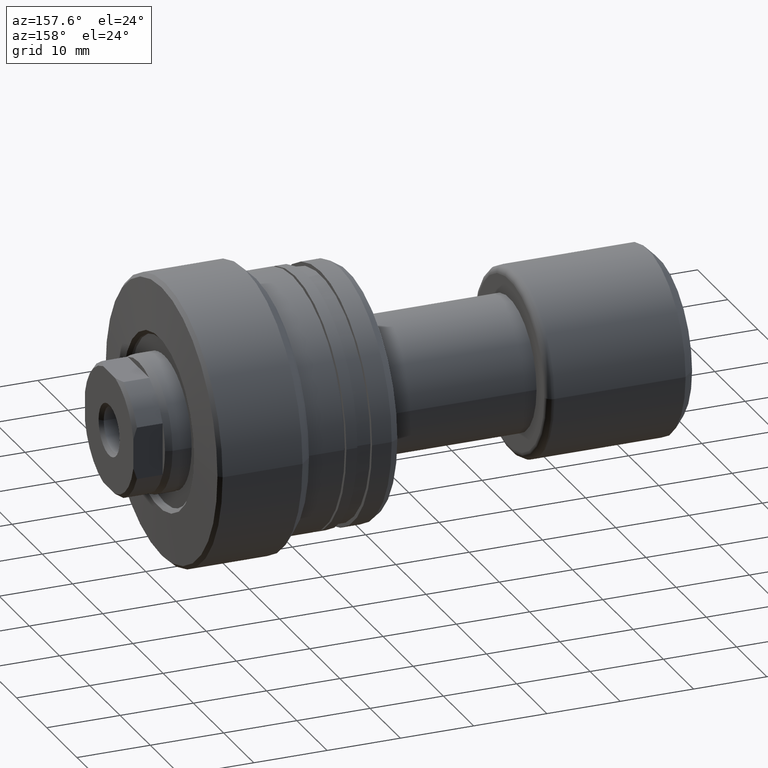
[diagram: clean part render]
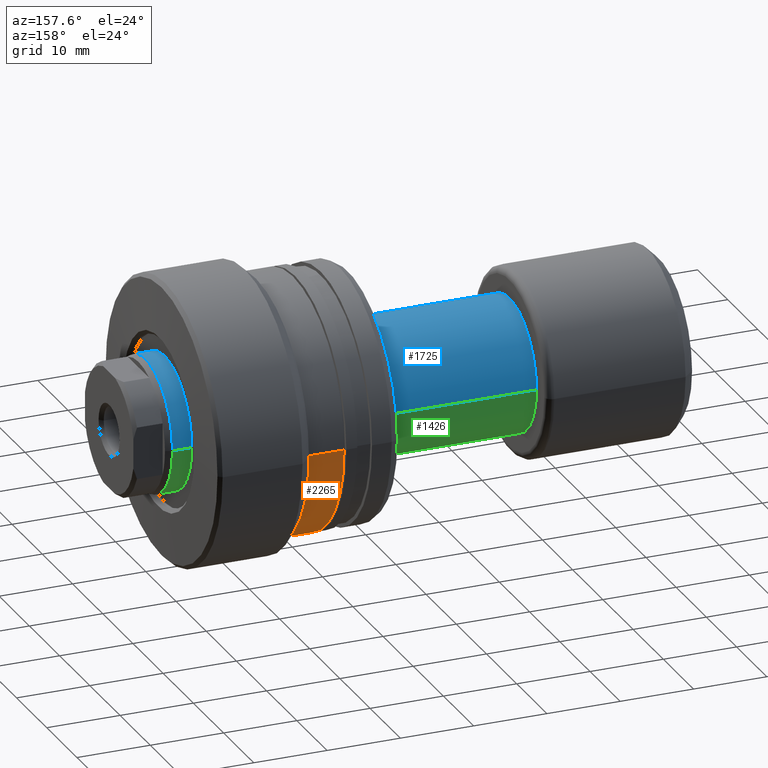
[diagram: same view with three faces highlighted in distinct colors, each labeled with its STEP entity id]
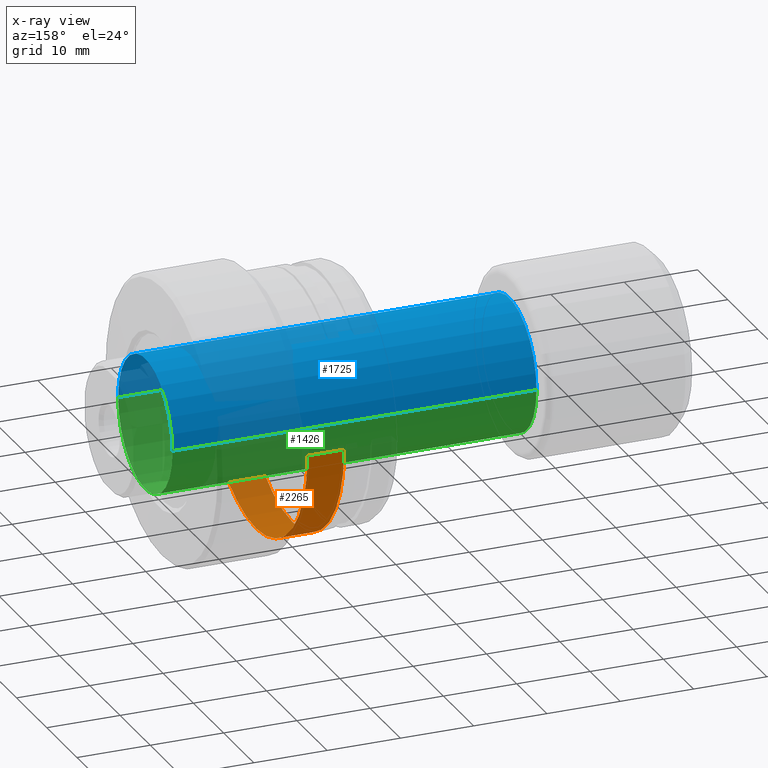
[diagram: x-ray of the same camera — body ghosted, the three highlighted faces saturated]
A machine part, auxiliary view with three faces highlighted in distinct colors.
The next image is the same camera in x-ray (body ghosted, the three faces saturated) — at least one of them is partly hidden behind the body in this view.
Their STEP definitions:

[orange] entity #2265 — the highlighted cylindrical surface (partial cylindrical patch) has radius 17 mm, axis along (-1, 0, 0).
#9 = CARTESIAN_POINT ( 'NONE',  ( -18.99999999999996447, 16.99999999999998224, 2.081899558550499885E-15 ) ) ;
#24 = DIRECTION ( 'NONE',  ( -1.020425574104004591E-15, -1.000000000000000000, 0.000000000000000000 ) ) ;
#71 = CIRCLE ( 'NONE', #1996, 16.99999999999999289 ) ;
#80 = CARTESIAN_POINT ( 'NONE',  ( -13.99999999999996447, 16.99999999999997158, 2.081899558550499096E-15 ) ) ;
#143 = AXIS2_PLACEMENT_3D ( 'NONE', #1515, #405, #1937 ) ;
#156 = DIRECTION ( 'NONE',  ( -1.020425574104004985E-15, -1.000000000000000000, 0.000000000000000000 ) ) ;
#237 = ORIENTED_EDGE ( 'NONE', *, *, #655, .T. ) ;
#262 = DIRECTION ( 'NONE',  ( -1.000000000000000000, 9.810081908519753690E-16, -0.000000000000000000 ) ) ;
#405 = DIRECTION ( 'NONE',  ( -1.000000000000000000, 9.810081908519753690E-16, -0.000000000000000000 ) ) ;
#521 = VECTOR ( 'NONE', #1013, 1000.000000000000000 ) ;
#526 = VERTEX_POINT ( 'NONE', #80 ) ;
#567 = CARTESIAN_POINT ( 'NONE',  ( -13.99999999999998046, -1.597083568161236364E-14, 0.000000000000000000 ) ) ;
#655 = EDGE_CURVE ( 'NONE', #691, #1315, #1965, .T. ) ;
#691 = VERTEX_POINT ( 'NONE', #1930 ) ;
#757 = CYLINDRICAL_SURFACE ( 'NONE', #143, 16.99999999999998934 ) ;
#938 = FACE_OUTER_BOUND ( 'NONE', #1251, .T. ) ;
#1013 = DIRECTION ( 'NONE',  ( -1.000000000000000000, 9.810081908519753690E-16, -0.000000000000000000 ) ) ;
#1115 = AXIS2_PLACEMENT_3D ( 'NONE', #567, #1288, #156 ) ;
#1244 = EDGE_CURVE ( 'NONE', #2194, #1315, #71, .T. ) ;
#1251 = EDGE_LOOP ( 'NONE', ( #1454, #2376, #237, #2062 ) ) ;
#1283 = EDGE_CURVE ( 'NONE', #526, #691, #1718, .T. ) ;
#1288 = DIRECTION ( 'NONE',  ( -1.000000000000000000, 9.810081908519753690E-16, -0.000000000000000000 ) ) ;
#1303 = VECTOR ( 'NONE', #262, 1000.000000000000000 ) ;
#1315 = VERTEX_POINT ( 'NONE', #1470 ) ;
#1454 = ORIENTED_EDGE ( 'NONE', *, *, #1882, .F. ) ;
#1470 = CARTESIAN_POINT ( 'NONE',  ( -19.00000000000000000, -17.00000000000000355, 0.000000000000000000 ) ) ;
#1515 = CARTESIAN_POINT ( 'NONE',  ( -30.28002276692732408, 0.000000000000000000, 0.000000000000000000 ) ) ;
#1612 = CARTESIAN_POINT ( 'NONE',  ( -30.28002276692730632, 16.99999999999998934, 2.081899558550499491E-15 ) ) ;
#1718 = CIRCLE ( 'NONE', #1115, 16.99999999999998579 ) ;
#1882 = EDGE_CURVE ( 'NONE', #526, #2194, #2319, .T. ) ;
#1888 = DIRECTION ( 'NONE',  ( -1.000000000000000000, 9.810081908519753690E-16, -0.000000000000000000 ) ) ;
#1930 = CARTESIAN_POINT ( 'NONE',  ( -13.99999999999999822, -17.00000000000000355, 0.000000000000000000 ) ) ;
#1937 = DIRECTION ( 'NONE',  ( -1.020425574104004788E-15, -1.000000000000000000, 0.000000000000000000 ) ) ;
#1965 = LINE ( 'NONE', #2123, #1303 ) ;
#1996 = AXIS2_PLACEMENT_3D ( 'NONE', #2426, #1888, #24 ) ;
#2062 = ORIENTED_EDGE ( 'NONE', *, *, #1244, .F. ) ;
#2123 = CARTESIAN_POINT ( 'NONE',  ( -30.28002276692734185, -16.99999999999998934, 0.000000000000000000 ) ) ;
#2194 = VERTEX_POINT ( 'NONE', #9 ) ;
#2265 = ADVANCED_FACE ( 'NONE', ( #938 ), #757, .T. ) ;
#2319 = LINE ( 'NONE', #1612, #521 ) ;
#2376 = ORIENTED_EDGE ( 'NONE', *, *, #1283, .T. ) ;
#2426 = CARTESIAN_POINT ( 'NONE',  ( -18.99999999999998224, -1.106579472735248521E-14, 0.000000000000000000 ) ) ;

[blue] entity #1725 — the highlighted cylindrical surface (partial cylindrical patch) has radius 9 mm, axis along (-1, -0, -0).
#41 = VERTEX_POINT ( 'NONE', #228 ) ;
#49 = LINE ( 'NONE', #782, #319 ) ;
#136 = EDGE_CURVE ( 'NONE', #1491, #41, #49, .T. ) ;
#205 = CIRCLE ( 'NONE', #1791, 9.000000000000190070 ) ;
#228 = CARTESIAN_POINT ( 'NONE',  ( 20.39999999999999858, 9.000000000000000000, 1.102182119232623630E-15 ) ) ;
#233 = DIRECTION ( 'NONE',  ( -1.000000000000000000, -1.069542322069065801E-17, -0.000000000000000000 ) ) ;
#269 = ORIENTED_EDGE ( 'NONE', *, *, #136, .T. ) ;
#290 = EDGE_CURVE ( 'NONE', #877, #1491, #205, .T. ) ;
#319 = VECTOR ( 'NONE', #1542, 1000.000000000000000 ) ;
#406 = DIRECTION ( 'NONE',  ( -1.000000000000000000, -1.069542322069065801E-17, -0.000000000000000000 ) ) ;
#443 = LINE ( 'NONE', #1553, #1471 ) ;
#459 = EDGE_CURVE ( 'NONE', #721, #41, #759, .T. ) ;
#632 = DIRECTION ( 'NONE',  ( 0.000000000000000000, -1.000000000000000000, 0.000000000000000000 ) ) ;
#652 = ORIENTED_EDGE ( 'NONE', *, *, #1849, .F. ) ;
#721 = VERTEX_POINT ( 'NONE', #957 ) ;
#759 = CIRCLE ( 'NONE', #2139, 9.000000000000000000 ) ;
#782 = CARTESIAN_POINT ( 'NONE',  ( -9.625880898621694358E-17, 9.000000000000094147, 1.102182119232629547E-15 ) ) ;
#854 = DIRECTION ( 'NONE',  ( -1.000000000000000000, -1.069542322069065801E-17, -0.000000000000000000 ) ) ;
#861 = CARTESIAN_POINT ( 'NONE',  ( 70.06675751232378957, 7.493936252958094024E-16, 0.000000000000000000 ) ) ;
#877 = VERTEX_POINT ( 'NONE', #2214 ) ;
#957 = CARTESIAN_POINT ( 'NONE',  ( 20.39999999999999858, -9.000000000000000000, 0.000000000000000000 ) ) ;
#962 = FACE_OUTER_BOUND ( 'NONE', #1358, .T. ) ;
#1086 = DIRECTION ( 'NONE',  ( 0.000000000000000000, -1.000000000000000000, 0.000000000000000000 ) ) ;
#1134 = CARTESIAN_POINT ( 'NONE',  ( 0.000000000000000000, 0.000000000000000000, 0.000000000000000000 ) ) ;
#1358 = EDGE_LOOP ( 'NONE', ( #2143, #269, #1563, #652 ) ) ;
#1370 = CARTESIAN_POINT ( 'NONE',  ( 70.06675751232378957, 9.000000000000190070, 1.102182119232641183E-15 ) ) ;
#1384 = DIRECTION ( 'NONE',  ( -1.000000000000000000, -1.069542322069065801E-17, -0.000000000000000000 ) ) ;
#1471 = VECTOR ( 'NONE', #1384, 1000.000000000000000 ) ;
#1491 = VERTEX_POINT ( 'NONE', #1370 ) ;
#1542 = DIRECTION ( 'NONE',  ( -1.000000000000000000, -1.069542322069065801E-17, -0.000000000000000000 ) ) ;
#1553 = CARTESIAN_POINT ( 'NONE',  ( 9.625880898621694358E-17, -9.000000000000094147, 0.000000000000000000 ) ) ;
#1563 = ORIENTED_EDGE ( 'NONE', *, *, #459, .F. ) ;
#1725 = ADVANCED_FACE ( 'NONE', ( #962 ), #2272, .T. ) ;
#1791 = AXIS2_PLACEMENT_3D ( 'NONE', #861, #854, #1086 ) ;
#1849 = EDGE_CURVE ( 'NONE', #877, #721, #443, .T. ) ;
#1900 = DIRECTION ( 'NONE',  ( 1.069542322069065955E-17, -1.000000000000000000, 0.000000000000000000 ) ) ;
#1910 = AXIS2_PLACEMENT_3D ( 'NONE', #1134, #406, #1900 ) ;
#2139 = AXIS2_PLACEMENT_3D ( 'NONE', #2166, #233, #632 ) ;
#2143 = ORIENTED_EDGE ( 'NONE', *, *, #290, .T. ) ;
#2166 = CARTESIAN_POINT ( 'NONE',  ( 20.39999999999999858, 2.181866337020894116E-16, 0.000000000000000000 ) ) ;
#2214 = CARTESIAN_POINT ( 'NONE',  ( 70.06675751232378957, -9.000000000000190070, 0.000000000000000000 ) ) ;
#2272 = CYLINDRICAL_SURFACE ( 'NONE', #1910, 9.000000000000094147 ) ;

[green] entity #1426 — the highlighted cylindrical surface (partial cylindrical patch) has radius 9 mm, axis along (-1, -0, -0).
#21 = AXIS2_PLACEMENT_3D ( 'NONE', #1284, #2042, #390 ) ;
#31 = CARTESIAN_POINT ( 'NONE',  ( 70.06675751232378957, 7.493936252958094024E-16, 0.000000000000000000 ) ) ;
#41 = VERTEX_POINT ( 'NONE', #228 ) ;
#49 = LINE ( 'NONE', #782, #319 ) ;
#136 = EDGE_CURVE ( 'NONE', #1491, #41, #49, .T. ) ;
#228 = CARTESIAN_POINT ( 'NONE',  ( 20.39999999999999858, 9.000000000000000000, 1.102182119232623630E-15 ) ) ;
#247 = AXIS2_PLACEMENT_3D ( 'NONE', #432, #1407, #2161 ) ;
#319 = VECTOR ( 'NONE', #1542, 1000.000000000000000 ) ;
#390 = DIRECTION ( 'NONE',  ( 0.000000000000000000, -1.000000000000000000, 0.000000000000000000 ) ) ;
#432 = CARTESIAN_POINT ( 'NONE',  ( 0.000000000000000000, 0.000000000000000000, 0.000000000000000000 ) ) ;
#443 = LINE ( 'NONE', #1553, #1471 ) ;
#512 = EDGE_CURVE ( 'NONE', #1491, #877, #1836, .T. ) ;
#555 = CIRCLE ( 'NONE', #21, 9.000000000000000000 ) ;
#613 = DIRECTION ( 'NONE',  ( 0.000000000000000000, -1.000000000000000000, 0.000000000000000000 ) ) ;
#698 = EDGE_CURVE ( 'NONE', #41, #721, #555, .T. ) ;
#721 = VERTEX_POINT ( 'NONE', #957 ) ;
#782 = CARTESIAN_POINT ( 'NONE',  ( -9.625880898621694358E-17, 9.000000000000094147, 1.102182119232629547E-15 ) ) ;
#850 = ORIENTED_EDGE ( 'NONE', *, *, #136, .F. ) ;
#877 = VERTEX_POINT ( 'NONE', #2214 ) ;
#957 = CARTESIAN_POINT ( 'NONE',  ( 20.39999999999999858, -9.000000000000000000, 0.000000000000000000 ) ) ;
#1227 = AXIS2_PLACEMENT_3D ( 'NONE', #31, #2339, #613 ) ;
#1284 = CARTESIAN_POINT ( 'NONE',  ( 20.39999999999999858, 2.181866337020894116E-16, 0.000000000000000000 ) ) ;
#1352 = ORIENTED_EDGE ( 'NONE', *, *, #1849, .T. ) ;
#1370 = CARTESIAN_POINT ( 'NONE',  ( 70.06675751232378957, 9.000000000000190070, 1.102182119232641183E-15 ) ) ;
#1384 = DIRECTION ( 'NONE',  ( -1.000000000000000000, -1.069542322069065801E-17, -0.000000000000000000 ) ) ;
#1407 = DIRECTION ( 'NONE',  ( -1.000000000000000000, -1.069542322069065801E-17, -0.000000000000000000 ) ) ;
#1426 = ADVANCED_FACE ( 'NONE', ( #1590 ), #1969, .T. ) ;
#1471 = VECTOR ( 'NONE', #1384, 1000.000000000000000 ) ;
#1491 = VERTEX_POINT ( 'NONE', #1370 ) ;
#1542 = DIRECTION ( 'NONE',  ( -1.000000000000000000, -1.069542322069065801E-17, -0.000000000000000000 ) ) ;
#1553 = CARTESIAN_POINT ( 'NONE',  ( 9.625880898621694358E-17, -9.000000000000094147, 0.000000000000000000 ) ) ;
#1567 = ORIENTED_EDGE ( 'NONE', *, *, #698, .F. ) ;
#1590 = FACE_OUTER_BOUND ( 'NONE', #1846, .T. ) ;
#1836 = CIRCLE ( 'NONE', #1227, 9.000000000000190070 ) ;
#1846 = EDGE_LOOP ( 'NONE', ( #850, #2326, #1352, #1567 ) ) ;
#1849 = EDGE_CURVE ( 'NONE', #877, #721, #443, .T. ) ;
#1969 = CYLINDRICAL_SURFACE ( 'NONE', #247, 9.000000000000094147 ) ;
#2042 = DIRECTION ( 'NONE',  ( -1.000000000000000000, -1.069542322069065801E-17, -0.000000000000000000 ) ) ;
#2161 = DIRECTION ( 'NONE',  ( 1.069542322069065955E-17, -1.000000000000000000, 0.000000000000000000 ) ) ;
#2214 = CARTESIAN_POINT ( 'NONE',  ( 70.06675751232378957, -9.000000000000190070, 0.000000000000000000 ) ) ;
#2326 = ORIENTED_EDGE ( 'NONE', *, *, #512, .T. ) ;
#2339 = DIRECTION ( 'NONE',  ( -1.000000000000000000, -1.069542322069065801E-17, -0.000000000000000000 ) ) ;